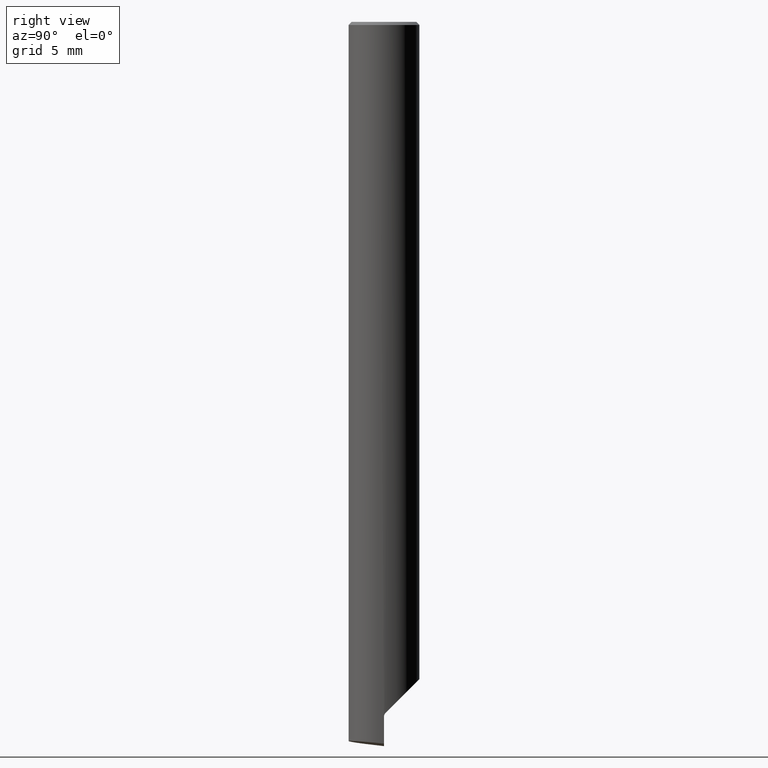
[diagram: clean part render]
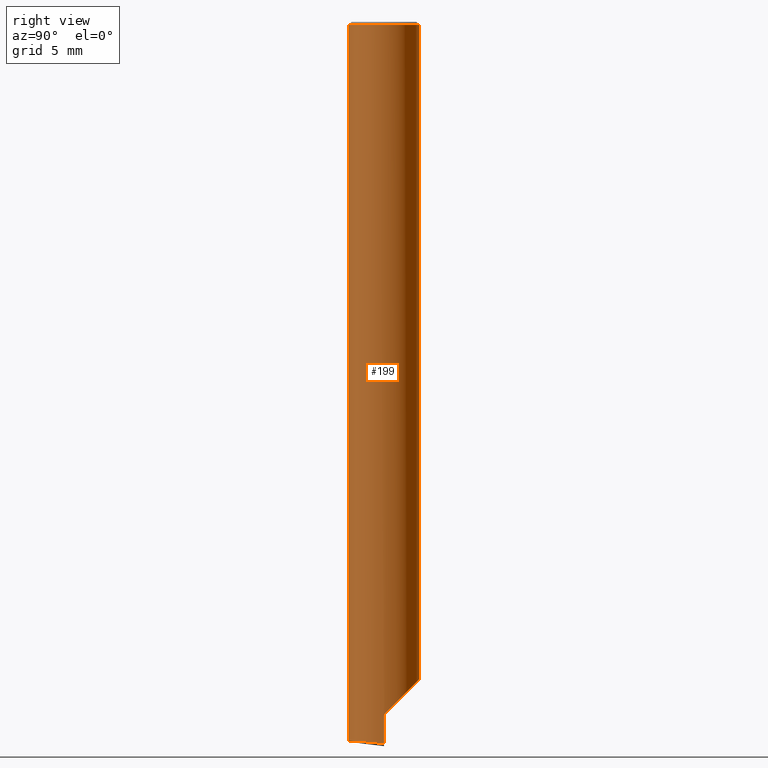
[diagram: same view with one face highlighted and labeled with its STEP entity id]
A machine part, right view. The second image highlights one B-rep face of the part: STEP entity #199.
In plain terms, the highlighted cylindrical surface (edge-blend (fillet) strip) has radius 2.25 mm, axis along (-0, -0, 1).
Its self-contained STEP definition (entity closure, byte-faithful):
#137=EDGE_CURVE('NONE',#255,#323,#356,.T.);
#149=VERTEX_POINT('NONE',#370);
#181=VERTEX_POINT('NONE',#404);
#199=ADVANCED_FACE('NONE',(#425),#426,.T.);
#205=VERTEX_POINT('NONE',#433);
#207=EDGE_CURVE('NONE',#205,#231,#435,.T.);
#213=EDGE_CURVE('NONE',#181,#205,#441,.T.);
#223=EDGE_CURVE('NONE',#323,#149,#452,.T.);
#231=VERTEX_POINT('NONE',#463);
#247=EDGE_CURVE('NONE',#309,#255,#481,.T.);
#255=VERTEX_POINT('NONE',#489);
#265=EDGE_CURVE('NONE',#149,#181,#499,.T.);
#297=EDGE_CURVE('NONE',#309,#231,#535,.T.);
#309=VERTEX_POINT('NONE',#547);
#323=VERTEX_POINT('NONE',#562);
#356=LINE('',#588,#589);
#370=CARTESIAN_POINT('',(2.24880820606123,0.0732233047033652,-43.9267766952966));
#404=CARTESIAN_POINT('',(2.75545529808154E-016,2.25,-41.75));
#425=FACE_OUTER_BOUND('',#695,.T.);
#426=CYLINDRICAL_SURFACE('',#696,2.25);
#433=CARTESIAN_POINT('',(2.75545529808154E-016,2.25,-0.200000000000001));
#435=CIRCLE('',#708,2.25);
#441=LINE('',#717,#718);
#452=B_SPLINE_CURVE_WITH_KNOTS('',3,(#736,#737,#738,#739),.UNSPECIFIED.,.F.,.F.,(4,4),(0.0,0.000195194090627246),.UNSPECIFIED.);
#463=CARTESIAN_POINT('',(0.0,-2.25,-0.200000000000001));
#481=(B_SPLINE_CURVE(3,(#774,#775,#776,#777),.UNSPECIFIED.,.F.,.F.)B_SPLINE_CURVE_WITH_KNOTS((4,4),(5.96259332171268,7.53338964850758),.UNSPECIFIED.)RATIONAL_B_SPLINE_CURVE((1.0,0.804737854124365,0.804737854124365,1.0))BOUNDED_CURVE()REPRESENTATION_ITEM('')GEOMETRIC_REPRESENTATION_ITEM()CURVE());
#489=CARTESIAN_POINT('',(2.25,0.0,-45.8394254147678));
#499=(B_SPLINE_CURVE(3,(#824,#825,#826,#827),.UNSPECIFIED.,.F.,.F.)B_SPLINE_CURVE_WITH_KNOTS((4,4),(4.74493841856295,6.28318530717959),.UNSPECIFIED.)RATIONAL_B_SPLINE_CURVE((1.0,0.812347063356753,0.812347063356753,1.0))BOUNDED_CURVE()REPRESENTATION_ITEM('')GEOMETRIC_REPRESENTATION_ITEM()CURVE());
#535=LINE('',#891,#892);
#547=CARTESIAN_POINT('',(0.0,-2.25,-45.6813684689799));
#562=CARTESIAN_POINT('',(2.25,0.0,-44.1035533905933));
#588=CARTESIAN_POINT('',(2.25,0.0,0.0));
#589=VECTOR('',#969,1000.0);
#695=EDGE_LOOP('',(#1039,#1040,#1041,#1042,#1043,#1044,#1045));
#696=AXIS2_PLACEMENT_3D('',#1046,#1047,#1048);
#708=AXIS2_PLACEMENT_3D('',#1056,#1057,#1058);
#717=CARTESIAN_POINT('',(2.75545529808154E-016,2.25,0.0));
#718=VECTOR('',#1060,1000.0);
#736=CARTESIAN_POINT('',(2.25,0.0,-44.1035533905933));
#737=CARTESIAN_POINT('',(2.25,0.0,-44.0375521015582));
#738=CARTESIAN_POINT('',(2.2503274462604,0.0265649376613821,-43.9734350623386));
#739=CARTESIAN_POINT('',(2.24880820606123,0.0732233047033652,-43.9267766952966));
#774=CARTESIAN_POINT('',(0.0,-2.25,-45.6813684689799));
#775=CARTESIAN_POINT('',(1.31801948466054,-2.25,-45.6353422143704));
#776=CARTESIAN_POINT('',(2.25,-1.31801948466054,-45.7008115449431));
#777=CARTESIAN_POINT('',(2.25,0.0,-45.8394254147678));
#824=CARTESIAN_POINT('',(2.24880820606123,0.0732233047033652,-43.9267766952966));
#825=CARTESIAN_POINT('',(2.20701389849969,1.356795279388,-42.643204720612));
#826=CARTESIAN_POINT('',(1.28425222535932,2.25,-41.75));
#827=CARTESIAN_POINT('',(2.75545529808154E-016,2.25,-41.75));
#891=CARTESIAN_POINT('',(0.0,-2.25,0.0));
#892=VECTOR('',#1169,1000.0);
#969=DIRECTION('',(-0.0,0.0,1.0));
#1039=ORIENTED_EDGE('',*,*,#265,.T.);
#1040=ORIENTED_EDGE('',*,*,#213,.T.);
#1041=ORIENTED_EDGE('',*,*,#207,.T.);
#1042=ORIENTED_EDGE('',*,*,#297,.F.);
#1043=ORIENTED_EDGE('',*,*,#247,.T.);
#1044=ORIENTED_EDGE('',*,*,#137,.T.);
#1045=ORIENTED_EDGE('',*,*,#223,.T.);
#1046=CARTESIAN_POINT('',(0.0,0.0,0.0));
#1047=DIRECTION('',(-0.0,-0.0,1.0));
#1048=DIRECTION('',(0.0,-1.0,0.0));
#1056=CARTESIAN_POINT('',(0.0,0.0,-0.200000000000001));
#1057=DIRECTION('',(0.0,0.0,-1.0));
#1058=DIRECTION('',(0.0,1.0,0.0));
#1060=DIRECTION('',(-0.0,0.0,1.0));
#1169=DIRECTION('',(-0.0,0.0,1.0));